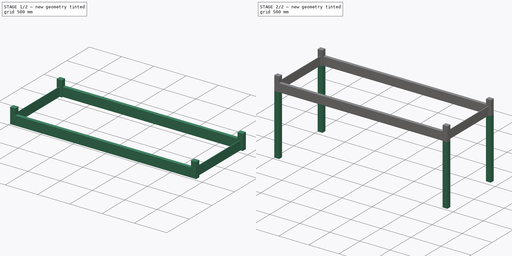
[diagram: build sequence overview — one tinted view per stage of 2, left to right]
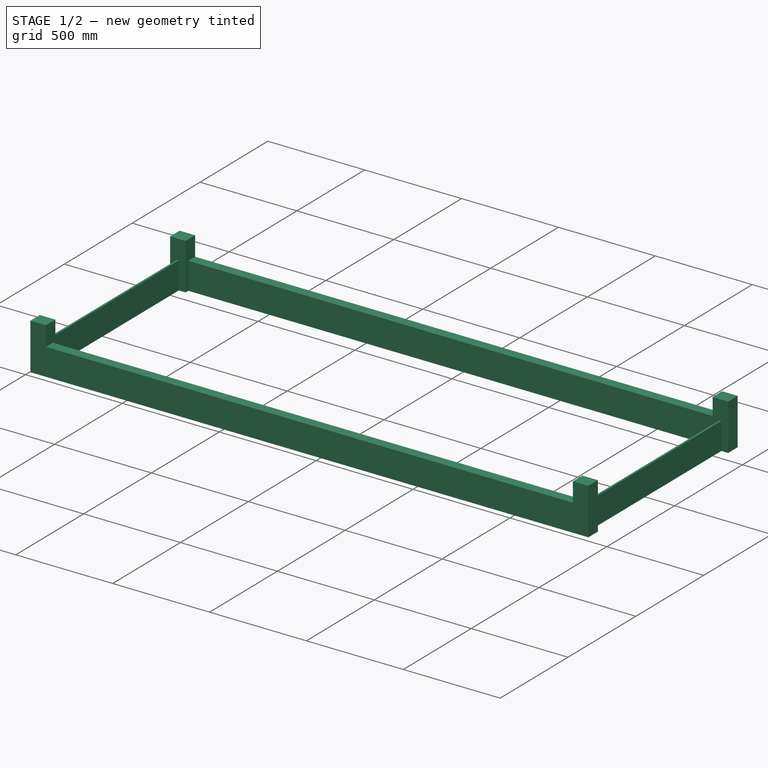
[diagram: stage 1 of 2 — iso view after this stage's code; geometry added in this stage tinted green]
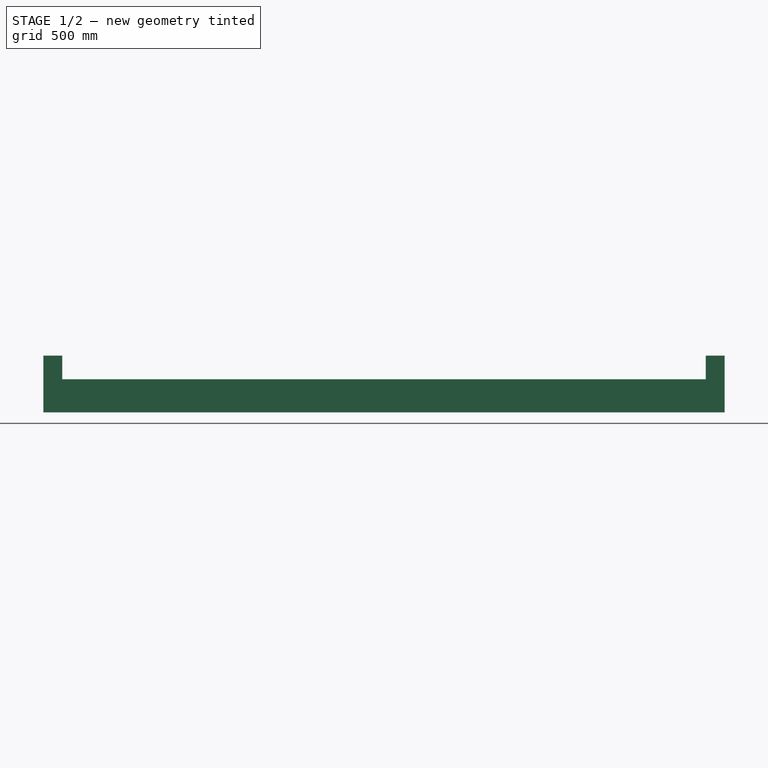
[diagram: stage 1 of 2 — front view after this stage's code; geometry added in this stage tinted green]
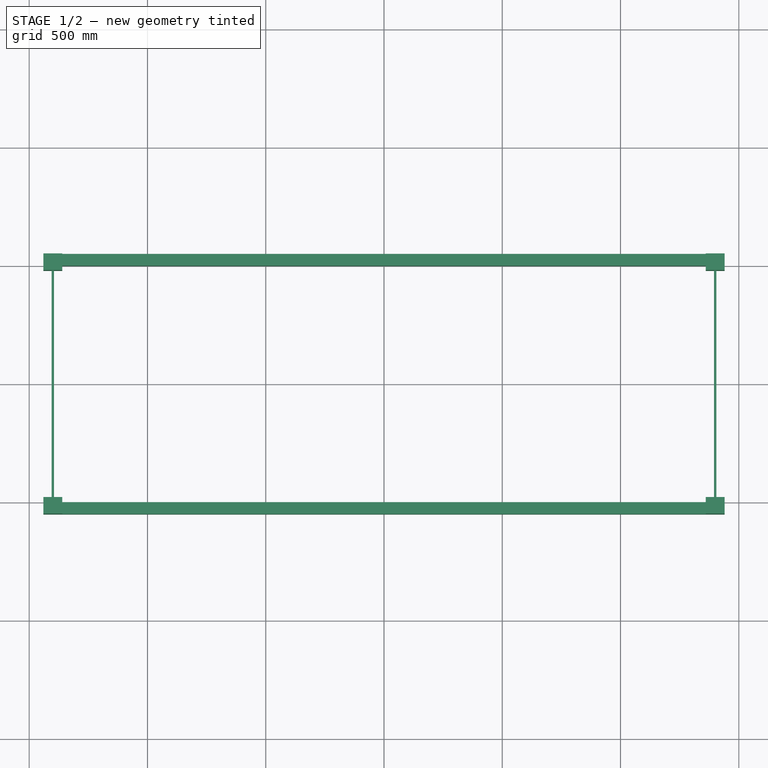
[diagram: stage 1 of 2 — top view after this stage's code; geometry added in this stage tinted green]
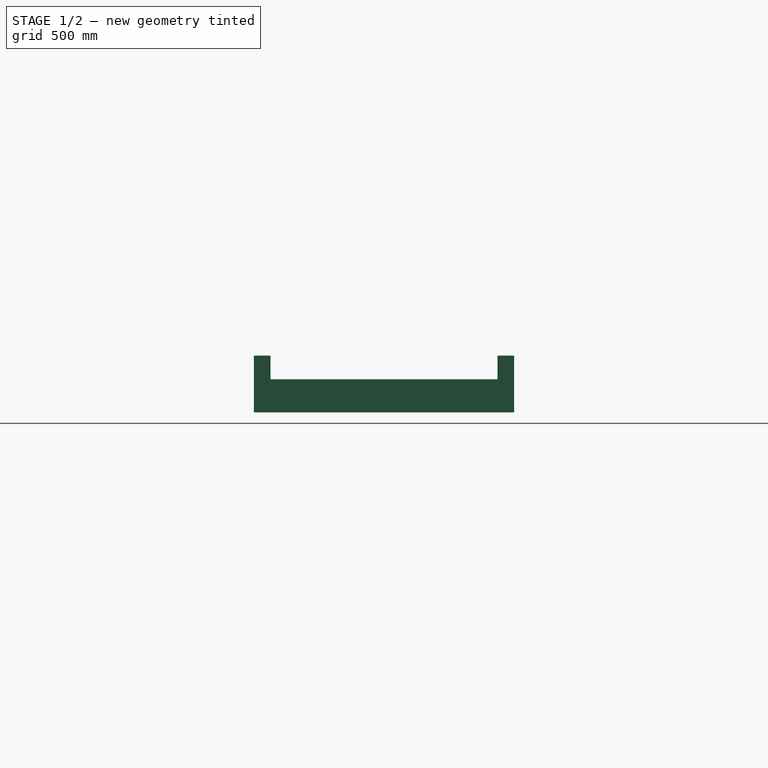
[diagram: stage 1 of 2 — right view after this stage's code; geometry added in this stage tinted green]
FCSTD DOCUMENT  (FreeCAD 0.21R33668 +26 (Git))
Label: modular_shelf
License: All rights reserved
LicenseURL: https://en.wikipedia.org/wiki/All_rights_reserved
objects: Sketcher::SketchObject×3, PartDesign::Pad×3, PartDesign::Chamfer×1, PartDesign::Body×1
note: 12 computed .brp shape members not serialized (recipe doc carries the construction recipe); baked Part::Feature solids carry a one-line shape summary decoded from their .brp

FEATURE [Sketcher::SketchObject] Sketch
  FullyConstrained = true
  MapMode = 5
  Support = -> [XY_Plane]
  sketch-geometry (26):
    g0: LineSegment StartX=-1440 StartY=-550 StartZ=0 EndX=1440 EndY=-550 EndZ=0
    g1: LineSegment StartX=1440 StartY=550 StartZ=0 EndX=-1440 EndY=550 EndZ=0
    g2: GeomPoint X=0 Y=0 Z=0
    g3: LineSegment StartX=-1360 StartY=-500 StartZ=0 EndX=1360 EndY=-500 EndZ=0
    g4: LineSegment StartX=1360 StartY=500 StartZ=0 EndX=-1360 EndY=500 EndZ=0
    g5: GeomPoint X=0 Y=0 Z=0
    g6: LineSegment StartX=-1360 StartY=500 StartZ=0 EndX=-1360 EndY=480 EndZ=0
    g7: LineSegment StartX=-1360 StartY=-480 StartZ=0 EndX=-1360 EndY=-500 EndZ=0
    g8: LineSegment StartX=-1360 StartY=480 StartZ=0 EndX=-1395 EndY=480 EndZ=0
    g9: LineSegment StartX=-1360 StartY=-480 StartZ=0 EndX=-1395 EndY=-480 EndZ=0
    g10: LineSegment StartX=-1395 StartY=480 StartZ=0 EndX=-1395 EndY=-480 EndZ=0
    g11: LineSegment StartX=1360 StartY=500 StartZ=0 EndX=1360 EndY=480 EndZ=0
    g12: LineSegment StartX=1360 StartY=480 StartZ=0 EndX=1395 EndY=480 EndZ=0
    g13: LineSegment StartX=1395 StartY=480 StartZ=0 EndX=1395 EndY=-480 EndZ=0
    g14: LineSegment StartX=1395 StartY=-480 StartZ=0 EndX=1360 EndY=-480 EndZ=0
    g15: LineSegment StartX=1360 StartY=-480 StartZ=0 EndX=1360 EndY=-500 EndZ=0
    g16: LineSegment StartX=-1440 StartY=550 StartZ=0 EndX=-1440 EndY=480 EndZ=0
    g17: LineSegment StartX=-1440 StartY=480 StartZ=0 EndX=-1405 EndY=480 EndZ=0
    g18: LineSegment StartX=-1405 StartY=480 StartZ=0 EndX=-1405 EndY=-480 EndZ=0
    g19: LineSegment StartX=-1405 StartY=-480 StartZ=0 EndX=-1440 EndY=-480 EndZ=0
    g20: LineSegment StartX=-1440 StartY=-480 StartZ=0 EndX=-1440 EndY=-550 EndZ=0
    g21: LineSegment StartX=1440 StartY=-550 StartZ=0 EndX=1440 EndY=-480 EndZ=0
    g22: LineSegment StartX=1440 StartY=-480 StartZ=0 EndX=1405 EndY=-480 EndZ=0
    g23: LineSegment StartX=1405 StartY=-480 StartZ=0 EndX=1405 EndY=480 EndZ=0
    g24: LineSegment StartX=1405 StartY=480 StartZ=0 EndX=1440 EndY=480 EndZ=0
    g25: LineSegment StartX=1440 StartY=480 StartZ=0 EndX=1440 EndY=550 EndZ=0
  constraints (69):
    c: Horizontal(g0)
    c: Symmetric(g0,g1,g2)
    c: Coincident(g2,g-1)
    c: Horizontal(g3)
    c: Horizontal(g4)
    c: Symmetric(g3,g4,g5)
    c: Coincident(g5,g2)
    c: Coincident(g6,g4)
    c: Coincident(g7,g3)
    c: Coincident(g8,g6)
    c: Coincident(g9,g7)
    c: Coincident(g10,g8)
    c: Coincident(g9,g10)
    c: Horizontal(g7,g9)
    c: Horizontal(g6,g8)
    c: Vertical(g3,g4)
    c: Vertical(g4,g6)
    c: Vertical(g6,g7)
    c: Vertical(g9,g8)
    c: Equal(g7,g6)
    c: Vertical(g3,g4)
    c: Coincident(g11,g4)
    c: Vertical(g11)
    c: Coincident(g12,g11)
    c: Horizontal(g12)
    c: Coincident(g13,g12)
    c: Vertical(g13)
    c: Coincident(g14,g13)
    c: Horizontal(g14)
    c: Coincident(g15,g14)
    c: Coincident(g15,g3)
    c: Vertical(g15)
    c: Equal(g15,g11)
    c: Symmetric(g12,g9,g2)
    c: Coincident(g16,g1)
    c: Vertical(g16)
    c: Coincident(g17,g16)
    c: Vertical(g18)
    c: Coincident(g19,g18)
    c: Horizontal(g19)
    c: Coincident(g20,g19)
    c: Coincident(g20,g0)
    c: Vertical(g20)
    c: Coincident(g21,g0)
    c: Vertical(g21)
    c: Coincident(g22,g21)
    c: Coincident(g23,g22)
    c: Vertical(g23)
    c: Coincident(g24,g23)
    c: Horizontal(g24)
    c: Coincident(g25,g24)
    c: Coincident(g25,g1)
    c: Horizontal(g23,g12)
    c: Vertical(g1,g24)
    c: Horizontal(g21,g22)
    c: Horizontal(g22,g13)
    c: Symmetric(g21,g19,g-2)
    c: Symmetric(g0,g1,g2)
    c: Horizontal(g8,g17)
    c: Horizontal(g17,g16)
    c: Coincident(g18,g17)
    c: Equal(g19,g22)
    c: DistanceX(g1,g1) = 2880
    c: DistanceY(g0,g1) = 1100
    c: Equal(g24,g12)
    c: DistanceY(g24,g1) = 70
    c: Distance(g4,g1) = 50
    c: DistanceX(g12,g23) = 10
    c: DistanceX(g11,g24) = 80
FEATURE [PartDesign::Pad] Pad
  Direction = (0,0,1)
  Length = 140
  Length2 = 10
  Profile = -> Sketch
  ReferenceAxis = -> Sketch [N_Axis]
  Type = 0
FEATURE [Sketcher::SketchObject] Sketch001
  ExternalGeometry = -> [Pad]
  FullyConstrained = true
  MapMode = 5
  Placement = pos=(0,0,140) rot=(0,0,1;0rad)
  Support = -> [Pad]
  sketch-geometry (16):
    g0: LineSegment StartX=-1440 StartY=550 StartZ=0 EndX=-1360 EndY=550 EndZ=0
    g1: LineSegment StartX=-1360 StartY=550 StartZ=0 EndX=-1360 EndY=480 EndZ=0
    g2: LineSegment StartX=-1360 StartY=480 StartZ=0 EndX=-1440 EndY=480 EndZ=0
    g3: LineSegment StartX=-1440 StartY=480 StartZ=0 EndX=-1440 EndY=550 EndZ=0
    g4: LineSegment StartX=-1360 StartY=-480 StartZ=0 EndX=-1440 EndY=-480 EndZ=0
    g5: LineSegment StartX=-1440 StartY=-480 StartZ=0 EndX=-1440 EndY=-550 EndZ=0
    g6: LineSegment StartX=-1440 StartY=-550 StartZ=0 EndX=-1360 EndY=-550 EndZ=0
    g7: LineSegment StartX=-1360 StartY=-550 StartZ=0 EndX=-1360 EndY=-480 EndZ=0
    g8: LineSegment StartX=1440 StartY=-550 StartZ=0 EndX=1360 EndY=-550 EndZ=0
    g9: LineSegment StartX=1360 StartY=-550 StartZ=0 EndX=1360 EndY=-480 EndZ=0
    g10: LineSegment StartX=1360 StartY=-480 StartZ=0 EndX=1440 EndY=-480 EndZ=0
    g11: LineSegment StartX=1440 StartY=-480 StartZ=0 EndX=1440 EndY=-550 EndZ=0
    g12: LineSegment StartX=1440 StartY=550 StartZ=0 EndX=1360 EndY=550 EndZ=0
    g13: LineSegment StartX=1360 StartY=550 StartZ=0 EndX=1360 EndY=480 EndZ=0
    g14: LineSegment StartX=1360 StartY=480 StartZ=0 EndX=1440 EndY=480 EndZ=0
    g15: LineSegment StartX=1440 StartY=480 StartZ=0 EndX=1440 EndY=550 EndZ=0
  constraints (40):
    c: Coincident(g0,g1)
    c: Coincident(g1,g2)
    c: Coincident(g2,g3)
    c: Coincident(g3,g0)
    c: Horizontal(g0)
    c: Horizontal(g2)
    c: Vertical(g1)
    c: Vertical(g3)
    c: Coincident(g0,g-10)
    c: Coincident(g1,g-9)
    c: Coincident(g4,g5)
    c: Coincident(g5,g6)
    c: Coincident(g6,g7)
    c: Coincident(g7,g4)
    c: Horizontal(g4)
    c: Horizontal(g6)
    c: Vertical(g5)
    c: Vertical(g7)
    c: Coincident(g4,g-7)
    c: Coincident(g5,g-8)
    c: Coincident(g8,g9)
    c: Coincident(g9,g10)
    c: Coincident(g10,g11)
    c: Coincident(g11,g8)
    c: Horizontal(g8)
    c: Horizontal(g10)
    c: Vertical(g9)
    c: Vertical(g11)
    c: Coincident(g8,g-5)
    c: Coincident(g9,g-6)
    c: Coincident(g12,g13)
    c: Coincident(g13,g14)
    c: Coincident(g14,g15)
    c: Coincident(g15,g12)
    c: Horizontal(g12)
    c: Horizontal(g14)
    c: Vertical(g13)
    c: Vertical(g15)
    c: Coincident(g12,g-4)
    c: Coincident(g13,g-3)
FEATURE [PartDesign::Pad] Pad001
  BaseFeature = -> Pad
  Direction = (0,0,1)
  Length = 100
  Length2 = 10
  Profile = -> Sketch001
  ReferenceAxis = -> Sketch001 [N_Axis]
  Type = 0
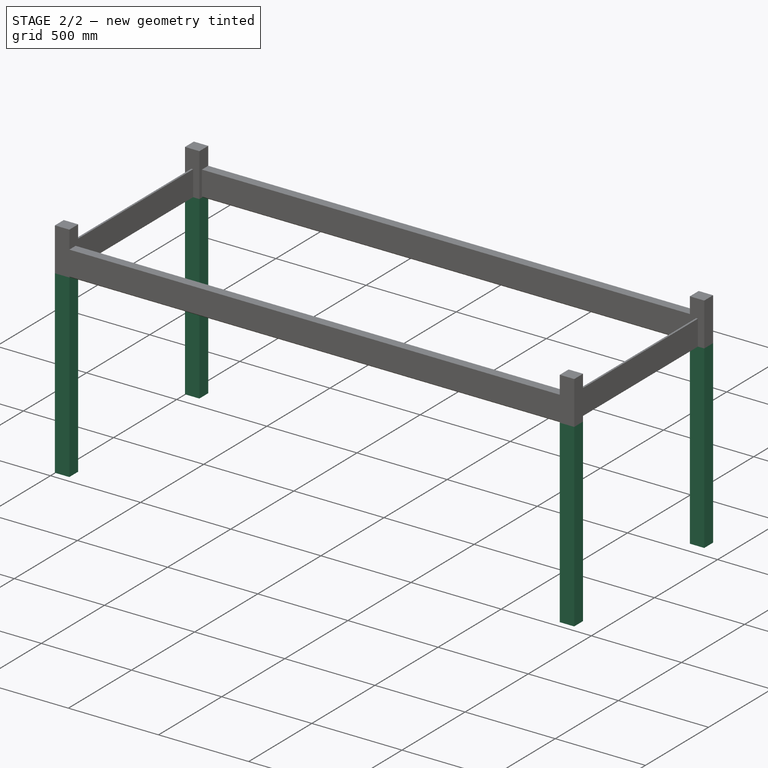
[diagram: stage 2 of 2 — iso view after this stage's code; geometry added in this stage tinted green]
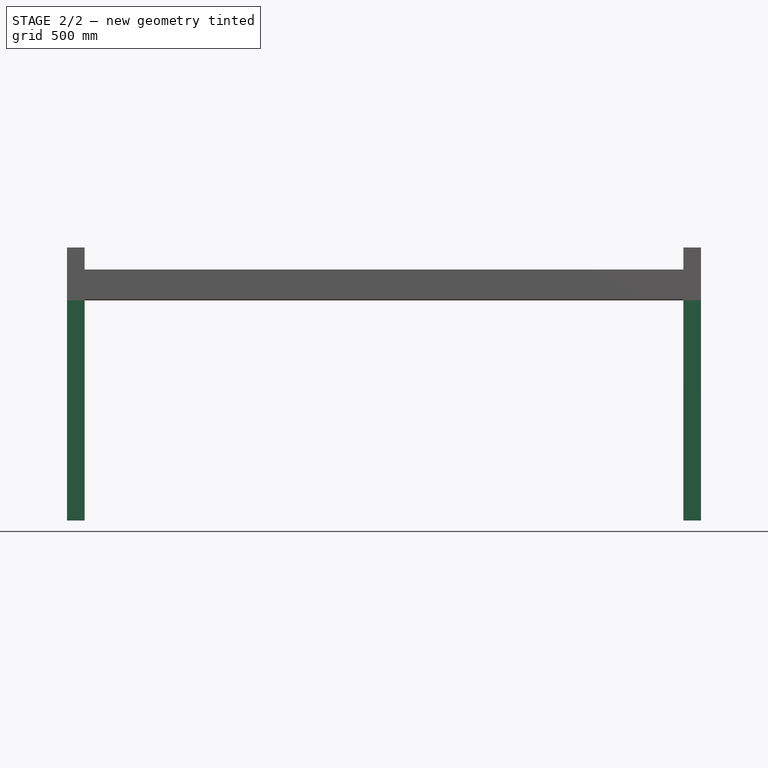
[diagram: stage 2 of 2 — front view after this stage's code; geometry added in this stage tinted green]
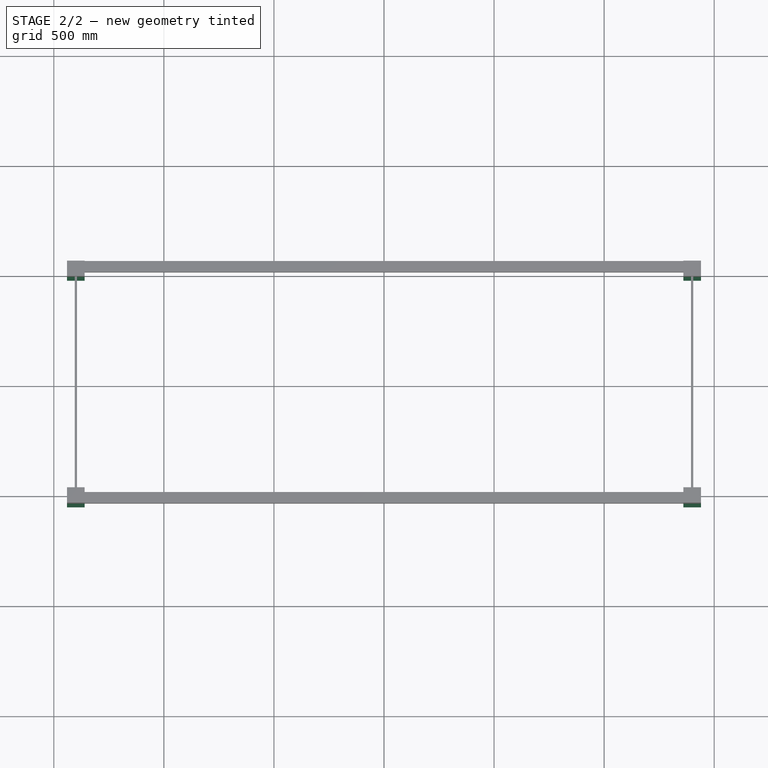
[diagram: stage 2 of 2 — top view after this stage's code; geometry added in this stage tinted green]
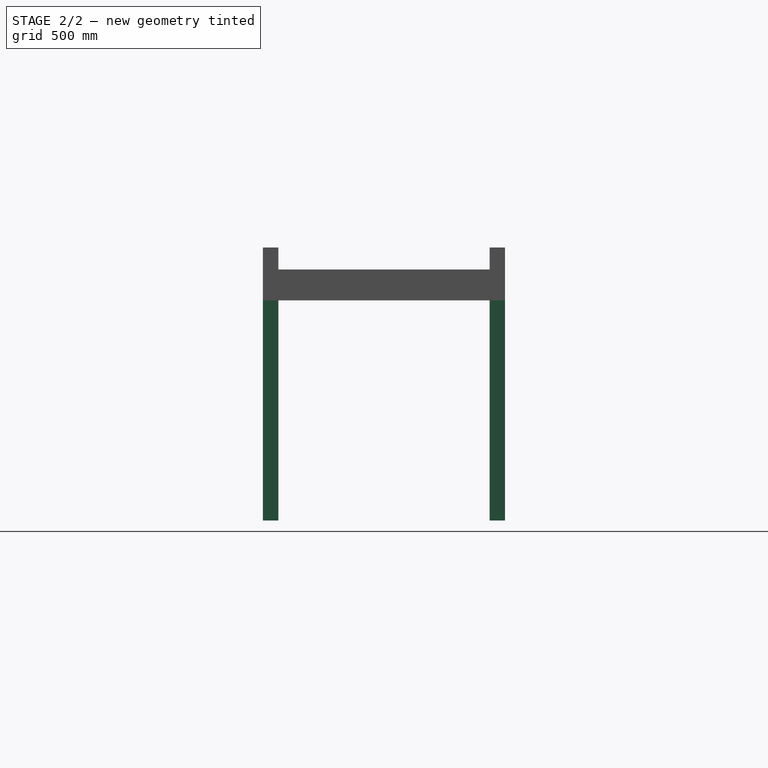
[diagram: stage 2 of 2 — right view after this stage's code; geometry added in this stage tinted green]
FEATURE [Sketcher::SketchObject] Sketch002
  ExternalGeometry = -> [Pad001]
  FullyConstrained = true
  MapMode = 5
  Placement = pos=(0,0,0) rot=(1,0,0;3.14159rad)
  Support = -> [Pad001]
  sketch-geometry (16):
    g0: LineSegment StartX=1440 StartY=550 StartZ=0 EndX=1360 EndY=550 EndZ=0
    g1: LineSegment StartX=1360 StartY=550 StartZ=0 EndX=1360 EndY=480 EndZ=0
    g2: LineSegment StartX=1360 StartY=480 StartZ=0 EndX=1440 EndY=480 EndZ=0
    g3: LineSegment StartX=1440 StartY=480 StartZ=0 EndX=1440 EndY=550 EndZ=0
    g4: LineSegment StartX=1360 StartY=-480 StartZ=0 EndX=1440 EndY=-480 EndZ=0
    g5: LineSegment StartX=1440 StartY=-480 StartZ=0 EndX=1440 EndY=-550 EndZ=0
    g6: LineSegment StartX=1440 StartY=-550 StartZ=0 EndX=1360 EndY=-550 EndZ=0
    g7: LineSegment StartX=1360 StartY=-550 StartZ=0 EndX=1360 EndY=-480 EndZ=0
    g8: LineSegment StartX=-1360 StartY=-480 StartZ=0 EndX=-1440 EndY=-480 EndZ=0
    g9: LineSegment StartX=-1440 StartY=-480 StartZ=0 EndX=-1440 EndY=-550 EndZ=0
    g10: LineSegment StartX=-1440 StartY=-550 StartZ=0 EndX=-1360 EndY=-550 EndZ=0
    g11: LineSegment StartX=-1360 StartY=-550 StartZ=0 EndX=-1360 EndY=-480 EndZ=0
    g12: LineSegment StartX=-1440 StartY=550 StartZ=0 EndX=-1360 EndY=550 EndZ=0
    g13: LineSegment StartX=-1360 StartY=550 StartZ=0 EndX=-1360 EndY=480 EndZ=0
    g14: LineSegment StartX=-1360 StartY=480 StartZ=0 EndX=-1440 EndY=480 EndZ=0
    g15: LineSegment StartX=-1440 StartY=480 StartZ=0 EndX=-1440 EndY=550 EndZ=0
  constraints (40):
    c: Coincident(g0,g1)
    c: Coincident(g1,g2)
    c: Coincident(g2,g3)
    c: Coincident(g3,g0)
    c: Horizontal(g0)
    c: Horizontal(g2)
    c: Vertical(g1)
    c: Vertical(g3)
    c: Coincident(g0,g-9)
    c: Coincident(g1,g-10)
    c: Coincident(g4,g5)
    c: Coincident(g5,g6)
    c: Coincident(g6,g7)
    c: Coincident(g7,g4)
    c: Horizontal(g4)
    c: Horizontal(g6)
    c: Vertical(g5)
    c: Vertical(g7)
    c: Coincident(g4,g-7)
    c: Coincident(g5,g-8)
    c: Coincident(g8,g9)
    c: Coincident(g9,g10)
    c: Coincident(g10,g11)
    c: Coincident(g11,g8)
    c: Horizontal(g8)
    c: Horizontal(g10)
    c: Vertical(g9)
    c: Vertical(g11)
    c: Coincident(g8,g-5)
    c: Coincident(g9,g-6)
    c: Coincident(g12,g13)
    c: Coincident(g13,g14)
    c: Coincident(g14,g15)
    c: Coincident(g15,g12)
    c: Horizontal(g12)
    c: Horizontal(g14)
    c: Vertical(g13)
    c: Vertical(g15)
    c: Coincident(g12,g-4)
    c: Coincident(g13,g-3)
FEATURE [PartDesign::Pad] Pad002
  BaseFeature = -> Pad001
  Direction = (0,0,-1)
  Length = 1000
  Length2 = 10
  Profile = -> Sketch002
  ReferenceAxis = -> Sketch002 [N_Axis]
  Type = 0
FEATURE [PartDesign::Chamfer] Chamfer
  Angle = 45
  Base = -> Pad002 [Edge122,Edge157,Edge19,Edge4]
  BaseFeature = -> Pad002
  ChamferType = 0
  FlipDirection = false
  Size = 5
  Size2 = 1
  SupportTransform = false
  UseAllEdges = false
FEATURE [PartDesign::Body] Body
  Group = -> [Sketch,Pad,Sketch001,Pad001,Sketch002,Pad002,Chamfer]
  Origin = -> Origin
  Tip = -> Chamfer
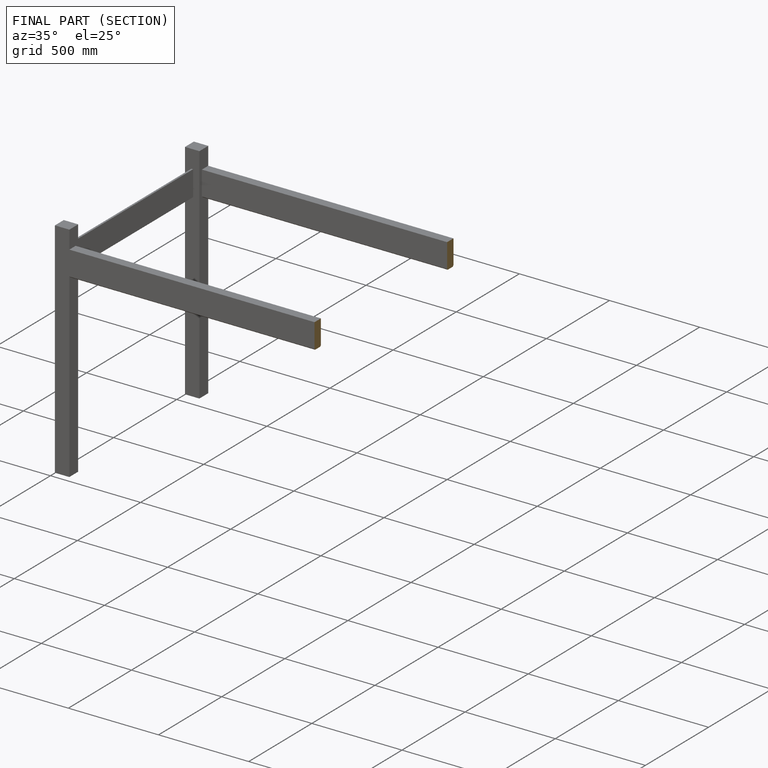
[diagram: finished part — half-section view (interior)]
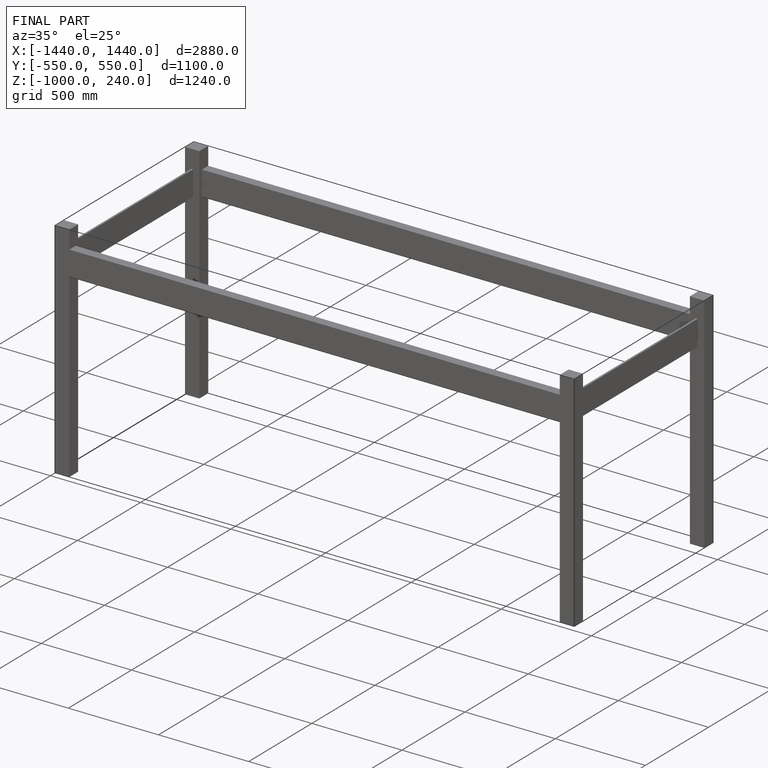
[diagram: finished part — iso view with bounding-box wireframe]
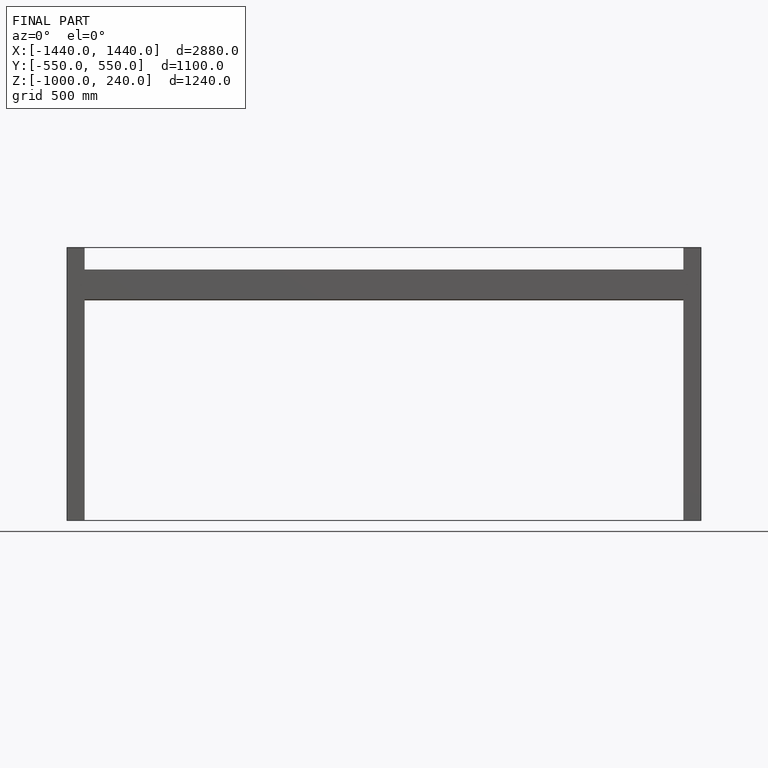
[diagram: finished part — front view with bounding-box wireframe]
